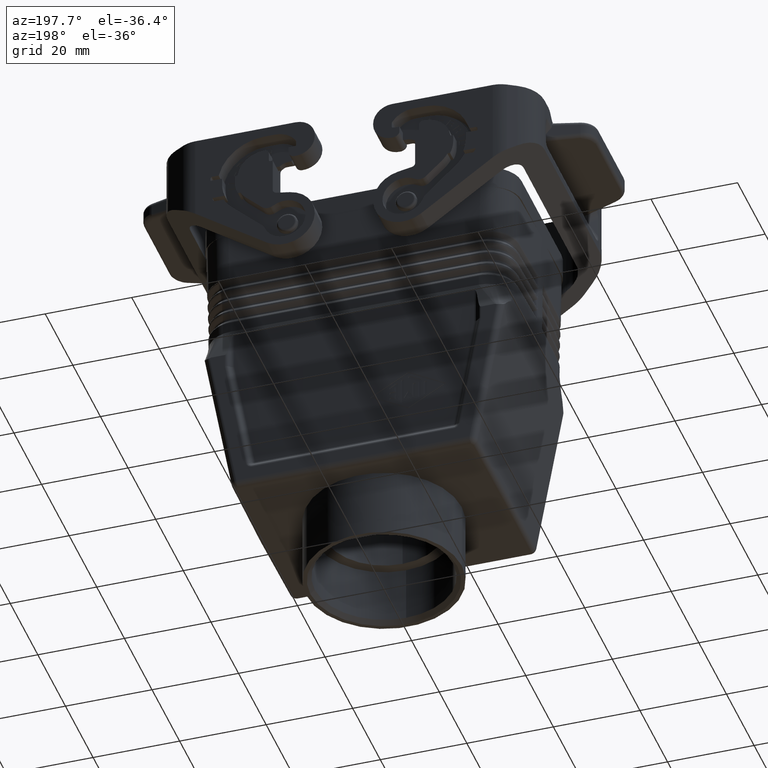
[diagram: clean part render]
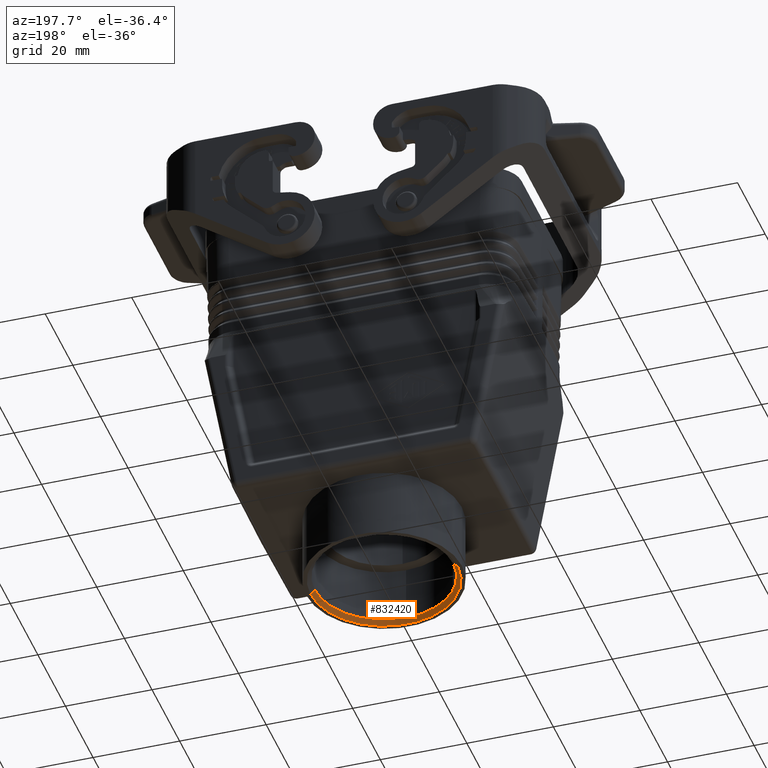
[diagram: same view with one face highlighted and labeled with its STEP entity id]
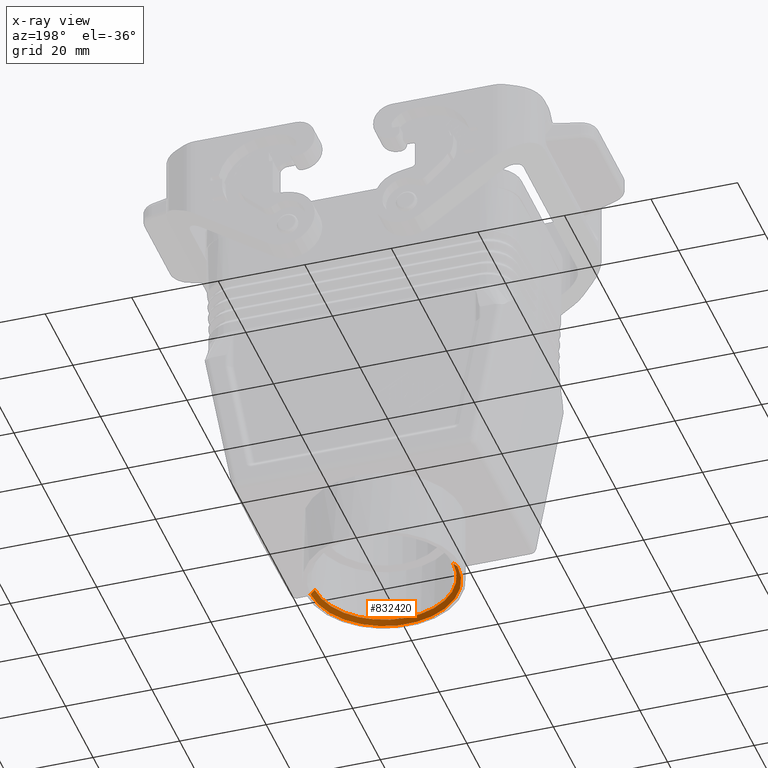
[diagram: x-ray of the same camera — body ghosted, the highlighted face saturated]
A machine part, auxiliary view. The second image highlights one B-rep face of the part: STEP entity #832420.
The next image is the same camera in x-ray: the body ghosted, the highlighted face saturated — about 0% of this face is hidden behind the body in this view.
In plain terms, the highlighted conical surface has half-angle 45 deg.
Its self-contained STEP definition (entity closure, byte-faithful):
#826600=CARTESIAN_POINT('',(95.6199999999998,27.41,86.));
#826610=DIRECTION('',(2.4980018054066E-16,-2.4980018054066E-16,1.));
#826620=DIRECTION('',(-6.24001301981464E-32,-1.,-2.4980018054066E-16));
#826630=AXIS2_PLACEMENT_3D('',#826600,#826610,#826620);
#826640=CIRCLE('',#826630,17.);
#826670=CARTESIAN_POINT('',(95.6199999999998,10.41,86.));
#826680=VERTEX_POINT('',#826670);
#826710=CARTESIAN_POINT('',(95.6199999999998,44.41,86.));
#826720=VERTEX_POINT('',#826710);
#826730=EDGE_CURVE('',#826680,#826720,#826640,.T.);
#826970=CARTESIAN_POINT('',(95.6199999999998,44.41,86.));
#826980=DIRECTION('',(0.,0.707106781186547,0.707106781186548));
#826990=VECTOR('',#826980,24.0416305603426);
#827000=LINE('',#826970,#826990);
#827010=CARTESIAN_POINT('',(95.6199999999998,43.41,85.));
#827020=VERTEX_POINT('',#827010);
#827030=EDGE_CURVE('',#827020,#826720,#827000,.T.);
#827050=CARTESIAN_POINT('',(95.6199999999998,27.41,85.));
#827060=DIRECTION('',(2.4980018054066E-16,-2.4980018054066E-16,1.));
#827070=DIRECTION('',(-6.24001301981464E-32,-1.,-2.4980018054066E-16));
#827080=AXIS2_PLACEMENT_3D('',#827050,#827060,#827070);
#827090=CIRCLE('',#827080,16.);
#827140=CARTESIAN_POINT('',(95.6199999999998,11.41,85.));
#827150=VERTEX_POINT('',#827140);
#827180=CARTESIAN_POINT('',(95.6199999999998,10.41,86.));
#827190=DIRECTION('',(0.,-0.707106781186548,0.707106781186547));
#827200=VECTOR('',#827190,24.0416305603426);
#827210=LINE('',#827180,#827200);
#827220=EDGE_CURVE('',#827150,#826680,#827210,.T.);
#827500=CARTESIAN_POINT('',(111.62,27.41,85.));
#827510=VERTEX_POINT('',#827500);
#827520=EDGE_CURVE('',#827510,#827020,#827090,.T.);
#830380=EDGE_CURVE('',#827150,#827510,#827090,.T.);
#832300=CARTESIAN_POINT('',(95.6199999999998,27.41,86.));
#832310=DIRECTION('',(8.35932630306E-16,-4.17966315153E-16,1.));
#832320=DIRECTION('',(-6.24001301981464E-32,-1.,-2.4980018054066E-16));
#832330=AXIS2_PLACEMENT_3D('',#832300,#832310,#832320);
#832340=CONICAL_SURFACE('',#832330,17.,0.785398163397448);
#832350=ORIENTED_EDGE('',*,*,#826730,.T.);
#832360=ORIENTED_EDGE('',*,*,#827220,.T.);
#832370=ORIENTED_EDGE('',*,*,#830380,.F.);
#832380=ORIENTED_EDGE('',*,*,#827520,.F.);
#832390=ORIENTED_EDGE('',*,*,#827030,.F.);
#832400=EDGE_LOOP('',(#832390,#832380,#832370,#832360,#832350));
#832410=FACE_OUTER_BOUND('',#832400,.T.);
#832420=ADVANCED_FACE('',(#832410),#832340,.F.);